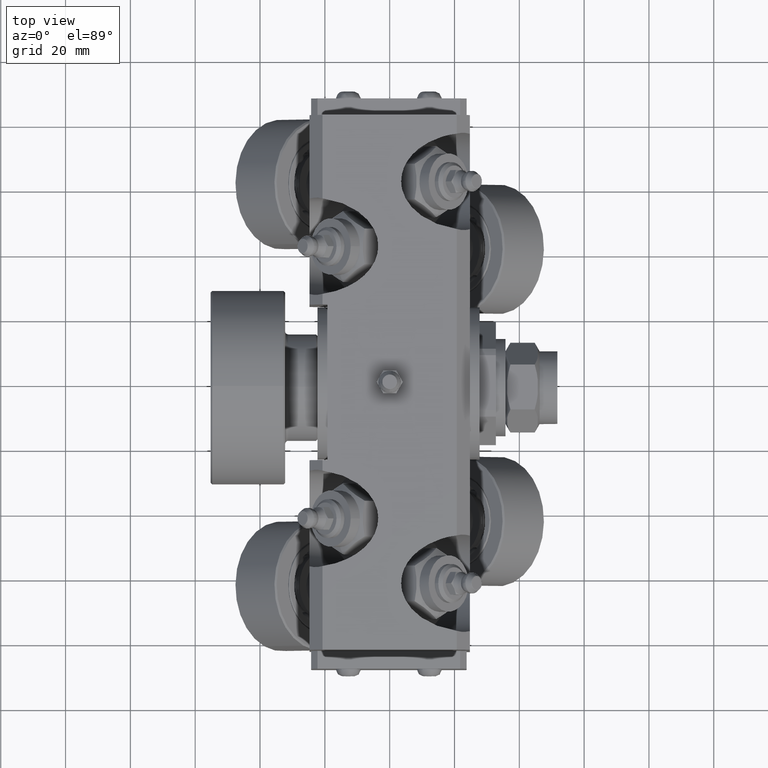
[diagram: clean part render]
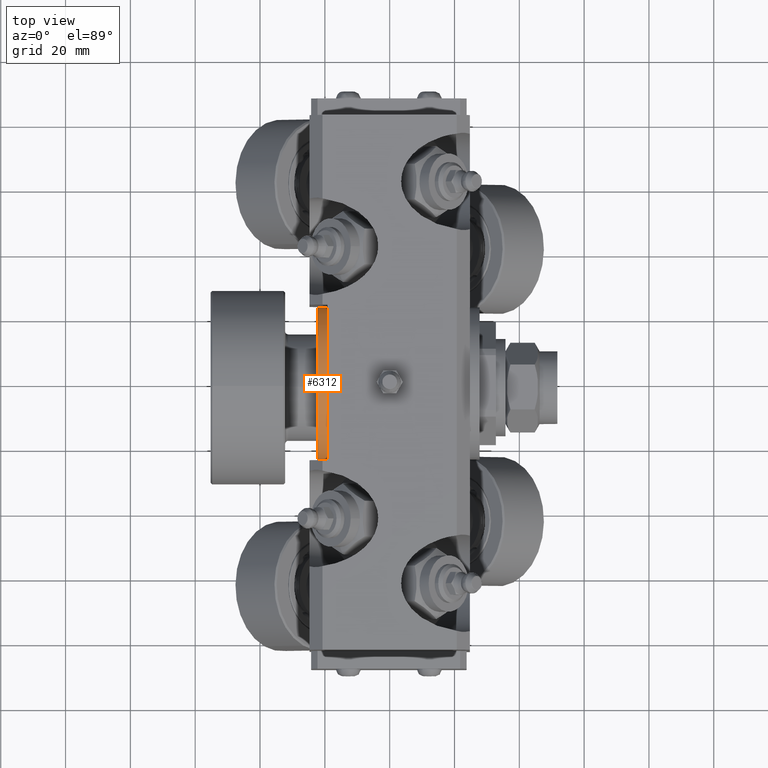
[diagram: same view with one face highlighted and labeled with its STEP entity id]
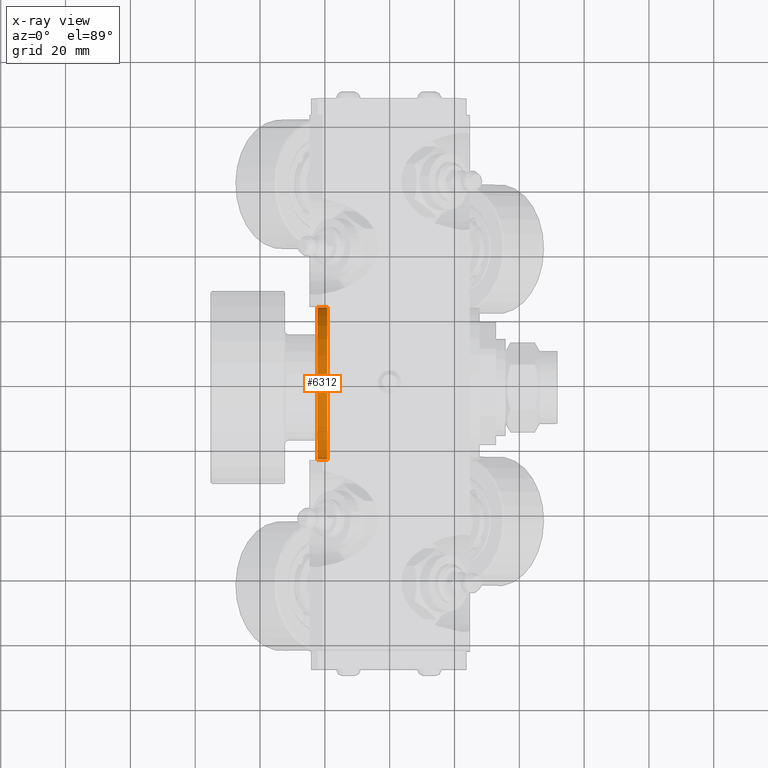
[diagram: x-ray of the same camera — body ghosted, the highlighted face saturated]
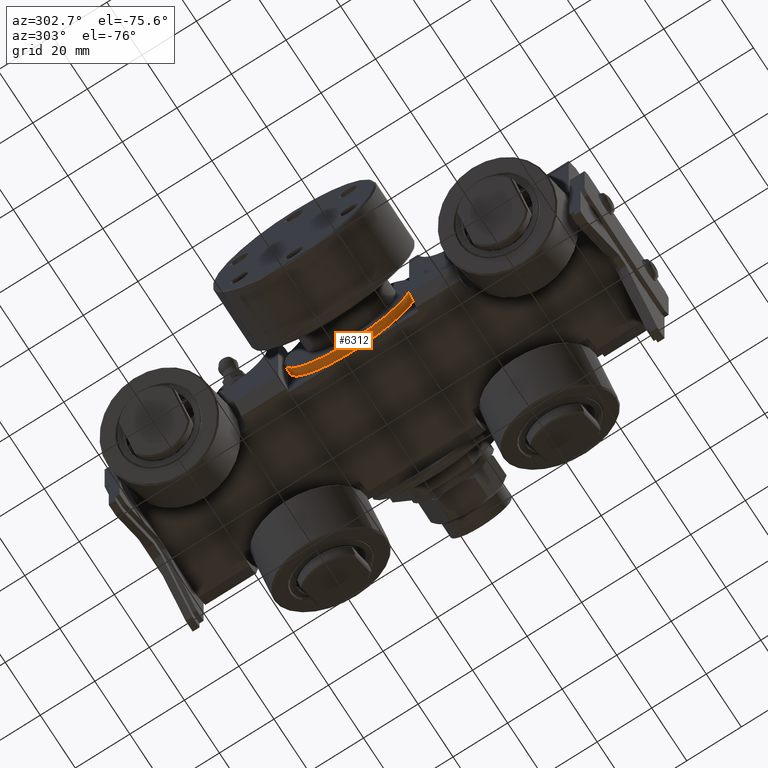
[diagram: same view with one face highlighted and labeled with its STEP entity id]
A machine part, top view. The second image highlights one B-rep face of the part: STEP entity #6312.
The next image is the same camera in x-ray: the body ghosted, the highlighted face saturated — about 0% of this face is hidden behind the body in this view.
A second angle (auxiliary view) of the same face is appended — the face is thin or edge-on in the first view.
In plain terms, the highlighted cylindrical surface (bore or boss wall) has radius 23.5 mm, axis along (1, 0, -0).
Its self-contained STEP definition (entity closure, byte-faithful):
#879=FACE_OUTER_BOUND('',#1297,.T.);
#1297=EDGE_LOOP('',(#5430,#5431,#5432,#5433));
#1690=CIRCLE('',#7385,23.5);
#1691=CIRCLE('',#7387,23.5);
#2098=LINE('',#12734,#2467);
#2467=VECTOR('',#8903,23.5);
#3057=VERTEX_POINT('',#12729);
#3058=VERTEX_POINT('',#12732);
#3877=EDGE_CURVE('',#3057,#3057,#1690,.T.);
#3878=EDGE_CURVE('',#3058,#3058,#1691,.T.);
#3879=EDGE_CURVE('',#3058,#3057,#2098,.T.);
#5430=ORIENTED_EDGE('',*,*,#3878,.F.);
#5431=ORIENTED_EDGE('',*,*,#3879,.T.);
#5432=ORIENTED_EDGE('',*,*,#3877,.F.);
#5433=ORIENTED_EDGE('',*,*,#3879,.F.);
#6062=CYLINDRICAL_SURFACE('',#7386,23.5);
#6312=ADVANCED_FACE('',(#879),#6062,.T.);
#7385=AXIS2_PLACEMENT_3D('',#12730,#8897,#8898);
#7386=AXIS2_PLACEMENT_3D('',#12731,#8899,#8900);
#7387=AXIS2_PLACEMENT_3D('',#12733,#8901,#8902);
#8897=DIRECTION('center_axis',(-1.,0.,0.));
#8898=DIRECTION('ref_axis',(0.,-1.,0.));
#8899=DIRECTION('center_axis',(1.,0.,0.));
#8900=DIRECTION('ref_axis',(0.,-1.,0.));
#8901=DIRECTION('center_axis',(1.,0.,0.));
#8902=DIRECTION('ref_axis',(0.,-1.,0.));
#8903=DIRECTION('',(-1.,0.,0.));
#12729=CARTESIAN_POINT('',(-1.5,23.5,2.87791997799628E-15));
#12730=CARTESIAN_POINT('Origin',(-1.5,0.,0.));
#12731=CARTESIAN_POINT('Origin',(0.,0.,0.));
#12732=CARTESIAN_POINT('',(1.5,23.5,2.87791997799628E-15));
#12733=CARTESIAN_POINT('Origin',(1.5,0.,0.));
#12734=CARTESIAN_POINT('',(0.,23.5,2.87791997799628E-15));